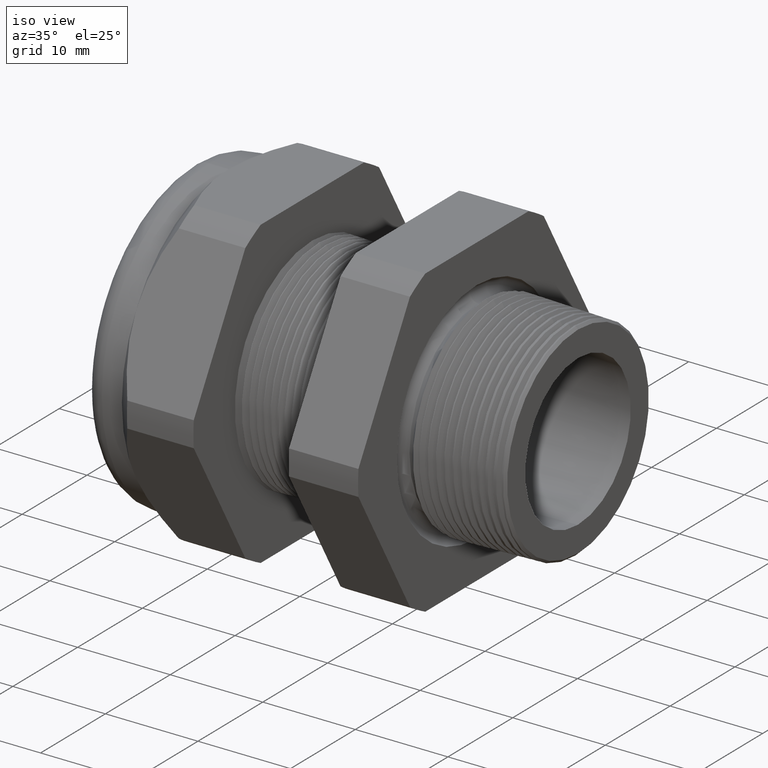
[diagram: clean part render]
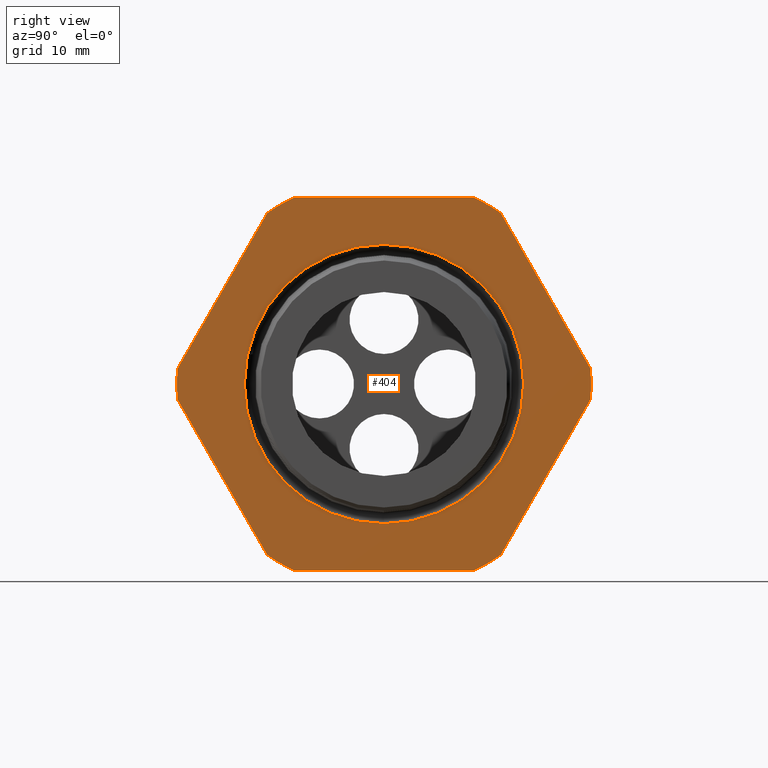
[diagram: tour spotlight — one face highlighted and labeled with its STEP entity id]
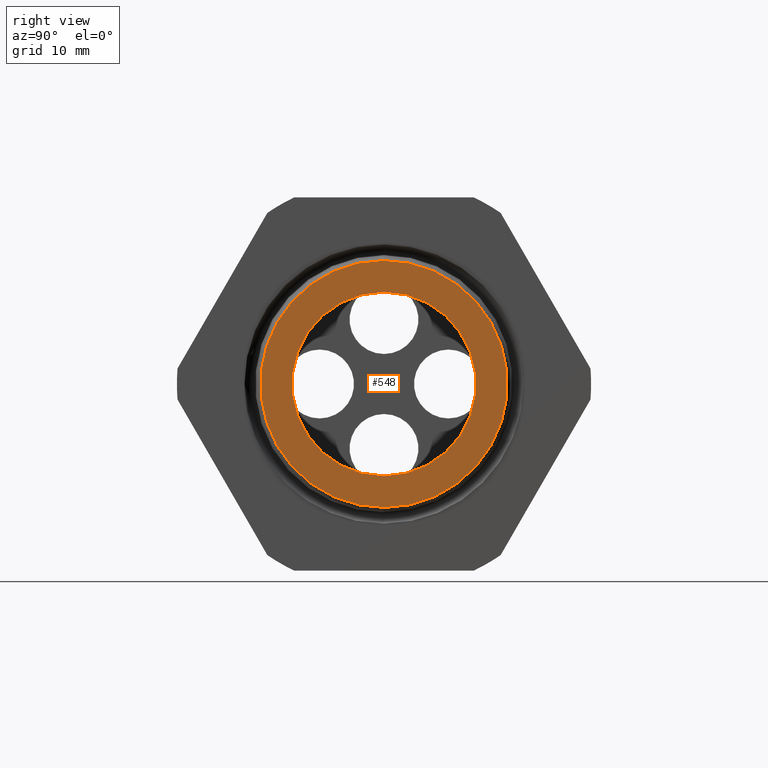
[diagram: tour spotlight — one face highlighted and labeled with its STEP entity id]
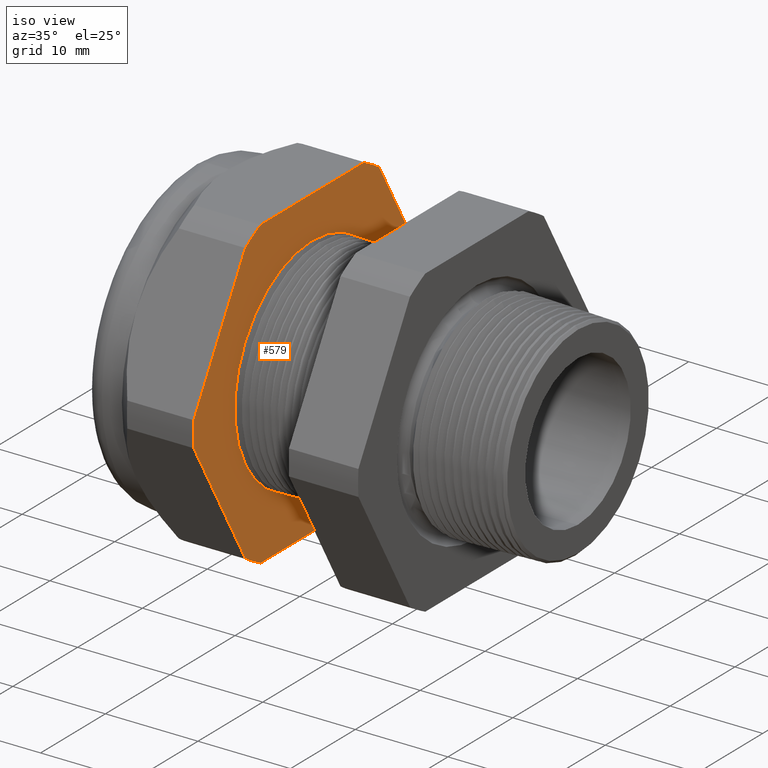
[diagram: tour spotlight — one face highlighted and labeled with its STEP entity id]
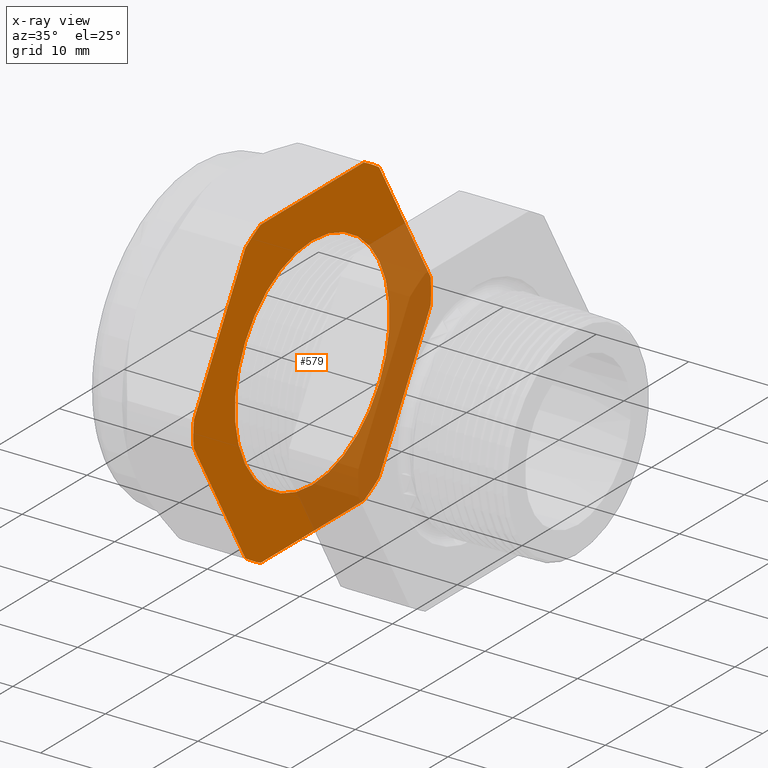
[diagram: x-ray of the same camera — body ghosted, this tour face saturated]
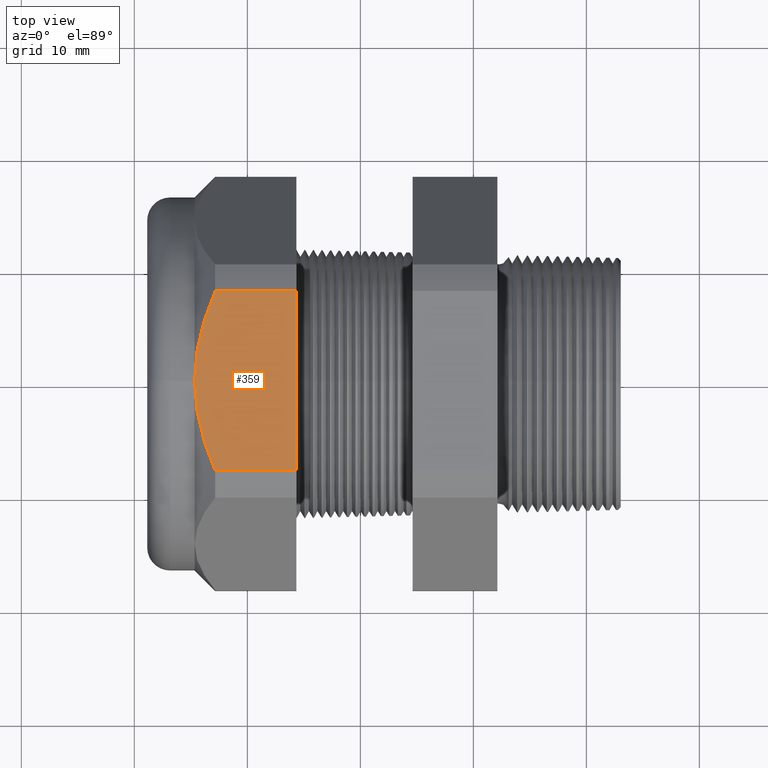
[diagram: tour spotlight — one face highlighted and labeled with its STEP entity id]
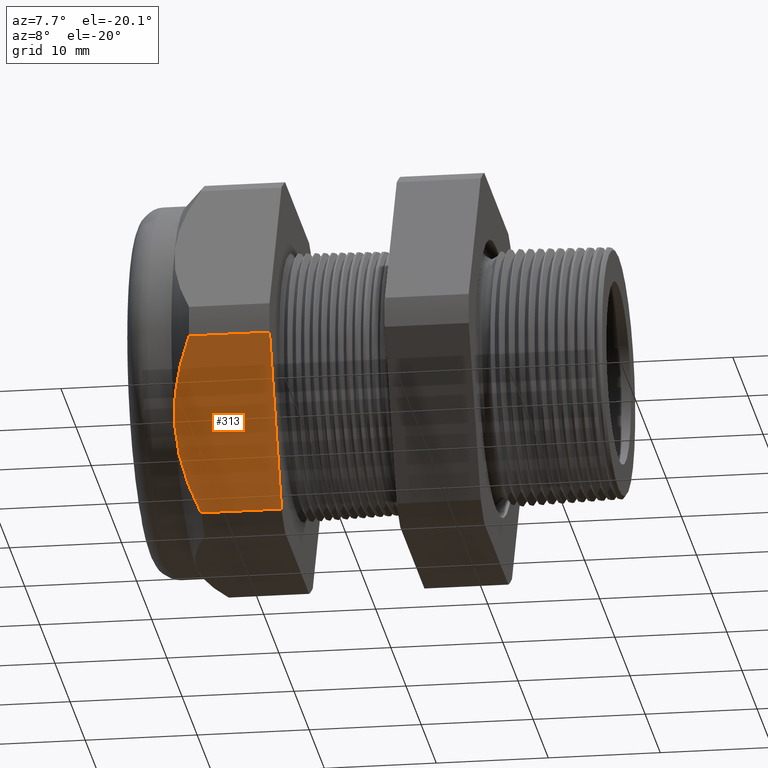
[diagram: tour spotlight — one face highlighted and labeled with its STEP entity id]
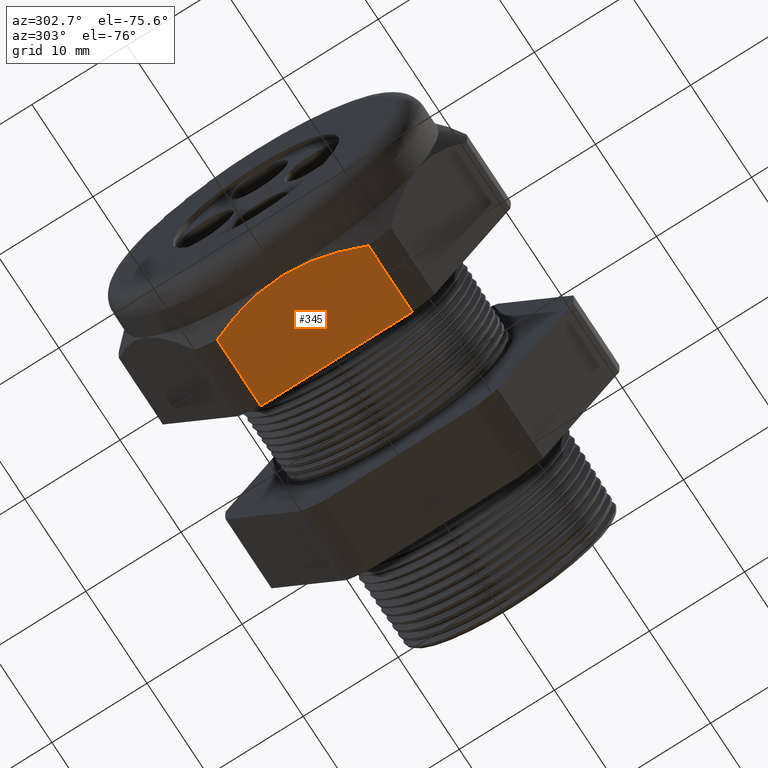
[diagram: tour spotlight — one face highlighted and labeled with its STEP entity id]
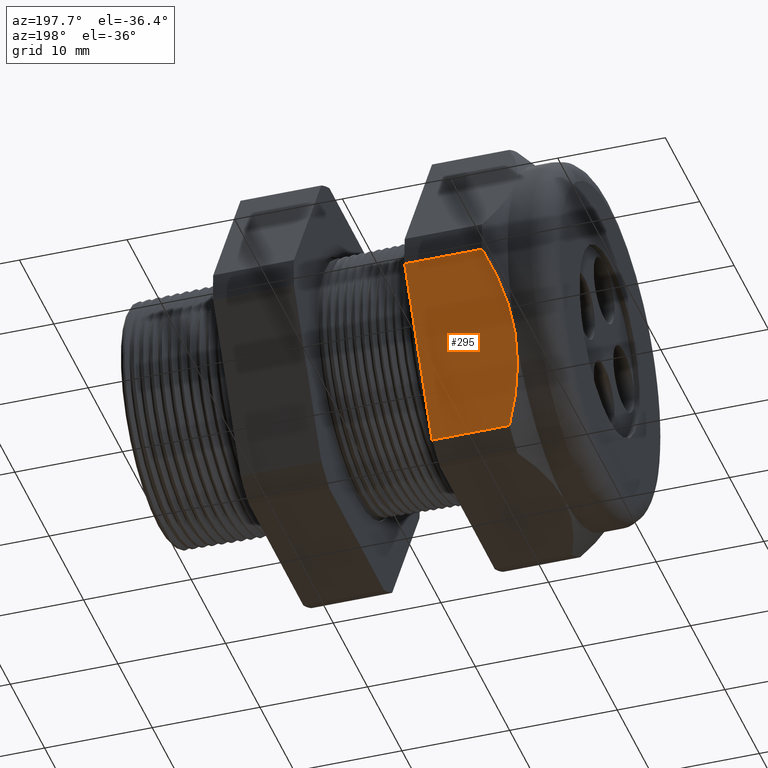
[diagram: tour spotlight — one face highlighted and labeled with its STEP entity id]
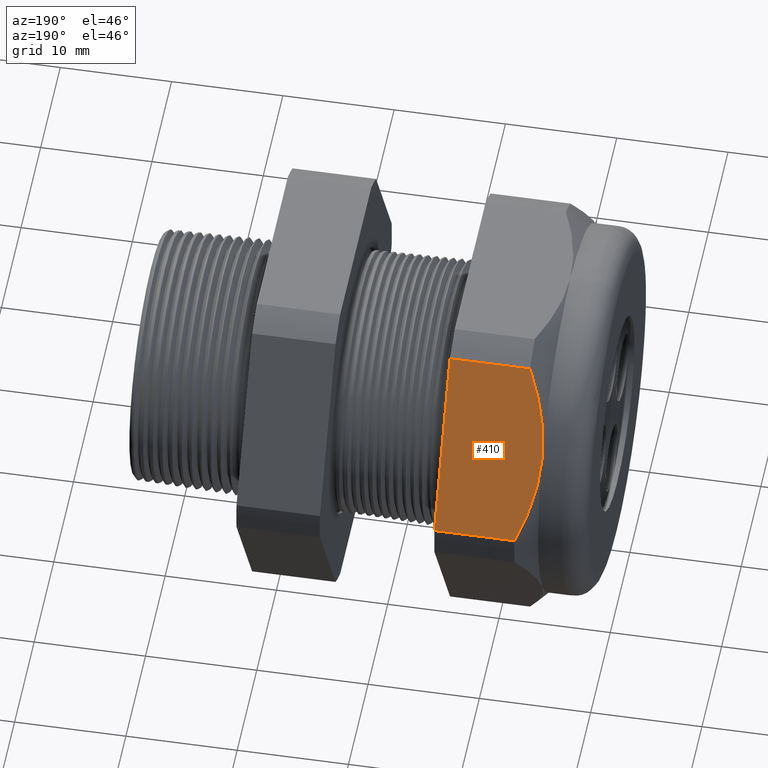
[diagram: tour spotlight — one face highlighted and labeled with its STEP entity id]
A machine part: a face-by-face anatomy tour. The part has 214 B-rep faces; the first image is the clean iso view, then the 8 largest visible faces are spotlighted one at a time (largest first), each with its STEP entity span.

Face 1 — right view, entity #404. In plain terms, the highlighted planar face has unit normal (1, 0, 0).
Definition (entity closure, byte-faithful):
#388 = VERTEX_POINT ( 'NONE', #1915 ) ;
#389 = ORIENTED_EDGE ( 'NONE', *, *, #390, .T. ) ;
#390 = EDGE_CURVE ( 'NONE', #388, #391, #1914, .T. ) ;
#391 = VERTEX_POINT ( 'NONE', #1910 ) ;
#392 = VERTEX_POINT ( 'NONE', #1909 ) ;
#404 = ADVANCED_FACE ( 'NONE', ( #1948, #1947 ), #1946, .T. ) ;
#405 = EDGE_LOOP ( 'NONE', ( #406, #464 ) ) ;
#406 = ORIENTED_EDGE ( 'NONE', *, *, #463, .F. ) ;
#435 = ORIENTED_EDGE ( 'NONE', *, *, #436, .T. ) ;
#436 = EDGE_CURVE ( 'NONE', #461, #462, #1983, .T. ) ;
#437 = ORIENTED_EDGE ( 'NONE', *, *, #438, .T. ) ;
#438 = EDGE_CURVE ( 'NONE', #462, #439, #2042, .T. ) ;
#439 = VERTEX_POINT ( 'NONE', #2037 ) ;
#440 = ORIENTED_EDGE ( 'NONE', *, *, #441, .T. ) ;
#441 = EDGE_CURVE ( 'NONE', #439, #442, #2036, .T. ) ;
#442 = VERTEX_POINT ( 'NONE', #2032 ) ;
#443 = ORIENTED_EDGE ( 'NONE', *, *, #444, .T. ) ;
#444 = EDGE_CURVE ( 'NONE', #442, #468, #2031, .T. ) ;
#448 = ORIENTED_EDGE ( 'NONE', *, *, #449, .T. ) ;
#449 = EDGE_CURVE ( 'NONE', #391, #392, #2019, .T. ) ;
#450 = ORIENTED_EDGE ( 'NONE', *, *, #451, .T. ) ;
#451 = EDGE_CURVE ( 'NONE', #392, #452, #2015, .T. ) ;
#452 = VERTEX_POINT ( 'NONE', #2074 ) ;
#453 = ORIENTED_EDGE ( 'NONE', *, *, #454, .T. ) ;
#454 = EDGE_CURVE ( 'NONE', #452, #455, #2073, .T. ) ;
#455 = VERTEX_POINT ( 'NONE', #2068 ) ;
#456 = ORIENTED_EDGE ( 'NONE', *, *, #457, .T. ) ;
#457 = EDGE_CURVE ( 'NONE', #455, #458, #2067, .T. ) ;
#458 = VERTEX_POINT ( 'NONE', #2063 ) ;
#459 = ORIENTED_EDGE ( 'NONE', *, *, #460, .T. ) ;
#460 = EDGE_CURVE ( 'NONE', #458, #461, #2062, .T. ) ;
#461 = VERTEX_POINT ( 'NONE', #2057 ) ;
#462 = VERTEX_POINT ( 'NONE', #2056 ) ;
#463 = EDGE_CURVE ( 'NONE', #1185, #4895, #2055, .T. ) ;
#464 = ORIENTED_EDGE ( 'NONE', *, *, #1188, .F. ) ;
#465 = EDGE_LOOP ( 'NONE', ( #466, #470, #389, #448, #450, #453, #456, #459, #435, #437, #440, #443 ) ) ;
#466 = ORIENTED_EDGE ( 'NONE', *, *, #467, .T. ) ;
#467 = EDGE_CURVE ( 'NONE', #468, #469, #2050, .T. ) ;
#468 = VERTEX_POINT ( 'NONE', #2046 ) ;
#469 = VERTEX_POINT ( 'NONE', #2045 ) ;
#470 = ORIENTED_EDGE ( 'NONE', *, *, #471, .T. ) ;
#471 = EDGE_CURVE ( 'NONE', #469, #388, #2109, .T. ) ;
#1185 = VERTEX_POINT ( 'NONE', #2907 ) ;
#1188 = EDGE_CURVE ( 'NONE', #4895, #1185, #2901, .T. ) ;
#1909 = CARTESIAN_POINT ( 'NONE',  ( -0.3100000000000000000, 0.3131489262315937900, 0.6499999999999999100 ) ) ;
#1910 = CARTESIAN_POINT ( 'NONE',  ( -0.3100000000000000000, 0.4063420493440890700, 0.5961949252843787800 ) ) ;
#1911 = DIRECTION ( 'NONE',  ( 0.0000000000000000000, -0.4999999999999998900, 0.8660254037844386000 ) ) ;
#1912 = VECTOR ( 'NONE', #1911, 39.37007874015748100 ) ;
#1913 = CARTESIAN_POINT ( 'NONE',  ( -0.3100000000000000000, 0.8879165124598854500, -0.2379165124598849300 ) ) ;
#1914 = LINE ( 'NONE', #1913, #1912 ) ;
#1915 = CARTESIAN_POINT ( 'NONE',  ( -0.3100000000000000000, 0.7194909755756817600, 0.05380507471562173000 ) ) ;
#1942 = DIRECTION ( 'NONE',  ( 0.0000000000000000000, 0.0000000000000000000, -1.000000000000000000 ) ) ;
#1943 = DIRECTION ( 'NONE',  ( 1.000000000000000000, 0.0000000000000000000, 0.0000000000000000000 ) ) ;
#1944 = CARTESIAN_POINT ( 'NONE',  ( -0.3100000000000000000, 1.300000000000000000, 0.0000000000000000000 ) ) ;
#1945 = AXIS2_PLACEMENT_3D ( 'NONE', #1944, #1943, #1942 ) ;
#1946 = PLANE ( 'NONE',  #1945 ) ;
#1947 = FACE_OUTER_BOUND ( 'NONE', #465, .T. ) ;
#1948 = FACE_BOUND ( 'NONE', #405, .T. ) ;
#1983 = LINE ( 'NONE', #1989, #2044 ) ;
#1989 = CARTESIAN_POINT ( 'NONE',  ( -0.3100000000000000000, -0.2379165124598852700, -0.8879165124598854500 ) ) ;
#2014 = CARTESIAN_POINT ( 'NONE',  ( -0.3100000000000000000, 1.300000000000000000, 0.6499999999999999100 ) ) ;
#2015 = LINE ( 'NONE', #2014, #2076 ) ;
#2016 = DIRECTION ( 'NONE',  ( 0.0000000000000000000, 0.0000000000000000000, -1.000000000000000000 ) ) ;
#2017 = DIRECTION ( 'NONE',  ( 1.000000000000000000, 0.0000000000000000000, 0.0000000000000000000 ) ) ;
#2018 = AXIS2_PLACEMENT_3D ( 'NONE', #2024, #2017, #2016 ) ;
#2019 = CIRCLE ( 'NONE', #2018, 0.7215000000000000300 ) ;
#2024 = CARTESIAN_POINT ( 'NONE',  ( -0.3100000000000000000, 0.0000000000000000000, 0.0000000000000000000 ) ) ;
#2027 = DIRECTION ( 'NONE',  ( 0.0000000000000000000, 0.0000000000000000000, -1.000000000000000000 ) ) ;
#2028 = DIRECTION ( 'NONE',  ( 1.000000000000000000, 0.0000000000000000000, 0.0000000000000000000 ) ) ;
#2029 = CARTESIAN_POINT ( 'NONE',  ( -0.3100000000000000000, 0.0000000000000000000, 0.0000000000000000000 ) ) ;
#2030 = AXIS2_PLACEMENT_3D ( 'NONE', #2029, #2028, #2027 ) ;
#2031 = CIRCLE ( 'NONE', #2030, 0.7215000000000000300 ) ;
#2032 = CARTESIAN_POINT ( 'NONE',  ( -0.3100000000000000000, 0.3131489262315934100, -0.6500000000000001300 ) ) ;
#2033 = DIRECTION ( 'NONE',  ( 0.0000000000000000000, 1.000000000000000000, 0.0000000000000000000 ) ) ;
#2034 = VECTOR ( 'NONE', #2033, 39.37007874015748100 ) ;
#2035 = CARTESIAN_POINT ( 'NONE',  ( -0.3100000000000000000, 1.300000000000000000, -0.6500000000000001300 ) ) ;
#2036 = LINE ( 'NONE', #2035, #2034 ) ;
#2037 = CARTESIAN_POINT ( 'NONE',  ( -0.3100000000000000000, -0.3131489262315934100, -0.6500000000000001300 ) ) ;
#2038 = DIRECTION ( 'NONE',  ( 0.0000000000000000000, 0.0000000000000000000, -1.000000000000000000 ) ) ;
#2039 = DIRECTION ( 'NONE',  ( 1.000000000000000000, 0.0000000000000000000, 0.0000000000000000000 ) ) ;
#2040 = CARTESIAN_POINT ( 'NONE',  ( -0.3100000000000000000, 0.0000000000000000000, 0.0000000000000000000 ) ) ;
#2041 = AXIS2_PLACEMENT_3D ( 'NONE', #2040, #2039, #2038 ) ;
#2042 = CIRCLE ( 'NONE', #2041, 0.7215000000000000300 ) ;
#2043 = DIRECTION ( 'NONE',  ( 0.0000000000000000000, 0.5000000000000001100, -0.8660254037844386000 ) ) ;
#2044 = VECTOR ( 'NONE', #2043, 39.37007874015748100 ) ;
#2045 = CARTESIAN_POINT ( 'NONE',  ( -0.3100000000000000000, 0.7194909755756817600, -0.05380507471562094600 ) ) ;
#2046 = CARTESIAN_POINT ( 'NONE',  ( -0.3100000000000000000, 0.4063420493440886800, -0.5961949252843790100 ) ) ;
#2047 = DIRECTION ( 'NONE',  ( 0.0000000000000000000, 0.4999999999999996100, 0.8660254037844388200 ) ) ;
#2048 = VECTOR ( 'NONE', #2047, 39.37007874015748900 ) ;
#2049 = CARTESIAN_POINT ( 'NONE',  ( -0.3100000000000000000, 0.8879165124598849000, 0.2379165124598850200 ) ) ;
#2050 = LINE ( 'NONE', #2049, #2048 ) ;
#2051 = DIRECTION ( 'NONE',  ( 0.0000000000000000000, 0.0000000000000000000, -1.000000000000000000 ) ) ;
#2052 = DIRECTION ( 'NONE',  ( 1.000000000000000000, 0.0000000000000000000, 0.0000000000000000000 ) ) ;
#2053 = CARTESIAN_POINT ( 'NONE',  ( -0.3100000000000000000, 0.0000000000000000000, 0.0000000000000000000 ) ) ;
#2054 = AXIS2_PLACEMENT_3D ( 'NONE', #2053, #2052, #2051 ) ;
#2055 = CIRCLE ( 'NONE', #2054, 0.4863026235185991000 ) ;
#2056 = CARTESIAN_POINT ( 'NONE',  ( -0.3100000000000000000, -0.4063420493440881300, -0.5961949252843793400 ) ) ;
#2057 = CARTESIAN_POINT ( 'NONE',  ( -0.3100000000000000000, -0.7194909755756819800, -0.05380507471562082100 ) ) ;
#2058 = DIRECTION ( 'NONE',  ( 0.0000000000000000000, 0.0000000000000000000, -1.000000000000000000 ) ) ;
#2059 = DIRECTION ( 'NONE',  ( 1.000000000000000000, 0.0000000000000000000, 0.0000000000000000000 ) ) ;
#2060 = CARTESIAN_POINT ( 'NONE',  ( -0.3100000000000000000, 0.0000000000000000000, 0.0000000000000000000 ) ) ;
#2061 = AXIS2_PLACEMENT_3D ( 'NONE', #2060, #2059, #2058 ) ;
#2062 = CIRCLE ( 'NONE', #2061, 0.7215000000000000300 ) ;
#2063 = CARTESIAN_POINT ( 'NONE',  ( -0.3100000000000000000, -0.7194909755756819800, 0.05380507471562025900 ) ) ;
#2064 = DIRECTION ( 'NONE',  ( 0.0000000000000000000, -0.4999999999999995600, -0.8660254037844388200 ) ) ;
#2065 = VECTOR ( 'NONE', #2064, 39.37007874015748900 ) ;
#2066 = CARTESIAN_POINT ( 'NONE',  ( -0.3100000000000000000, -0.2379165124598858200, 0.8879165124598844500 ) ) ;
#2067 = LINE ( 'NONE', #2066, #2065 ) ;
#2068 = CARTESIAN_POINT ( 'NONE',  ( -0.3100000000000000000, -0.4063420493440885700, 0.5961949252843791200 ) ) ;
#2069 = DIRECTION ( 'NONE',  ( 0.0000000000000000000, 0.0000000000000000000, -1.000000000000000000 ) ) ;
#2070 = DIRECTION ( 'NONE',  ( 1.000000000000000000, 0.0000000000000000000, 0.0000000000000000000 ) ) ;
#2071 = CARTESIAN_POINT ( 'NONE',  ( -0.3100000000000000000, 0.0000000000000000000, 0.0000000000000000000 ) ) ;
#2072 = AXIS2_PLACEMENT_3D ( 'NONE', #2071, #2070, #2069 ) ;
#2073 = CIRCLE ( 'NONE', #2072, 0.7215000000000000300 ) ;
#2074 = CARTESIAN_POINT ( 'NONE',  ( -0.3100000000000000000, -0.3131489262315937400, 0.6500000000000000200 ) ) ;
#2075 = DIRECTION ( 'NONE',  ( 0.0000000000000000000, -1.000000000000000000, 0.0000000000000000000 ) ) ;
#2076 = VECTOR ( 'NONE', #2075, 39.37007874015748100 ) ;
#2105 = DIRECTION ( 'NONE',  ( 0.0000000000000000000, 0.0000000000000000000, -1.000000000000000000 ) ) ;
#2106 = DIRECTION ( 'NONE',  ( 1.000000000000000000, 0.0000000000000000000, 0.0000000000000000000 ) ) ;
#2107 = CARTESIAN_POINT ( 'NONE',  ( -0.3100000000000000000, 0.0000000000000000000, 0.0000000000000000000 ) ) ;
#2108 = AXIS2_PLACEMENT_3D ( 'NONE', #2107, #2106, #2105 ) ;
#2109 = CIRCLE ( 'NONE', #2108, 0.7214999999999999200 ) ;
#2897 = DIRECTION ( 'NONE',  ( 0.0000000000000000000, 0.0000000000000000000, -1.000000000000000000 ) ) ;
#2898 = DIRECTION ( 'NONE',  ( 1.000000000000000000, 0.0000000000000000000, 0.0000000000000000000 ) ) ;
#2899 = CARTESIAN_POINT ( 'NONE',  ( -0.3100000000000000000, 0.0000000000000000000, 0.0000000000000000000 ) ) ;
#2900 = AXIS2_PLACEMENT_3D ( 'NONE', #2899, #2898, #2897 ) ;
#2901 = CIRCLE ( 'NONE', #2900, 0.4863026235185991000 ) ;
#2907 = CARTESIAN_POINT ( 'NONE',  ( -0.3100000000000000000, 0.0000000000000000000, -0.4863026235185991000 ) ) ;
#3051 = CARTESIAN_POINT ( 'NONE',  ( -0.3100000000000000000, 5.955489513090126900E-017, 0.4863026235185991000 ) ) ;
#4895 = VERTEX_POINT ( 'NONE', #3051 ) ;

Face 2 — right view, entity #548. In plain terms, the highlighted planar face has unit normal (1, 0, 0).
Definition (entity closure, byte-faithful):
#472 = EDGE_LOOP ( 'NONE', ( #473, #474 ) ) ;
#473 = ORIENTED_EDGE ( 'NONE', *, *, #5709, .F. ) ;
#474 = ORIENTED_EDGE ( 'NONE', *, *, #490, .F. ) ;
#490 = EDGE_CURVE ( 'NONE', #5711, #5710, #2078, .T. ) ;
#548 = ADVANCED_FACE ( 'NONE', ( #2215, #2214 ), #2213, .T. ) ;
#549 = EDGE_LOOP ( 'NONE', ( #550, #552 ) ) ;
#550 = ORIENTED_EDGE ( 'NONE', *, *, #551, .T. ) ;
#551 = EDGE_CURVE ( 'NONE', #5677, #5676, #2207, .T. ) ;
#552 = ORIENTED_EDGE ( 'NONE', *, *, #5675, .T. ) ;
#2078 = CIRCLE ( 'NONE', #2137, 0.3204016610924743100 ) ;
#2134 = DIRECTION ( 'NONE',  ( 0.0000000000000000000, 0.0000000000000000000, -1.000000000000000000 ) ) ;
#2135 = DIRECTION ( 'NONE',  ( 1.000000000000000000, 0.0000000000000000000, 0.0000000000000000000 ) ) ;
#2136 = CARTESIAN_POINT ( 'NONE',  ( 0.1200000000000000200, 0.0000000000000000000, 0.0000000000000000000 ) ) ;
#2137 = AXIS2_PLACEMENT_3D ( 'NONE', #2136, #2135, #2134 ) ;
#2203 = DIRECTION ( 'NONE',  ( 0.0000000000000000000, 0.0000000000000000000, -1.000000000000000000 ) ) ;
#2204 = DIRECTION ( 'NONE',  ( 1.000000000000000000, 0.0000000000000000000, 0.0000000000000000000 ) ) ;
#2205 = CARTESIAN_POINT ( 'NONE',  ( 0.1200000000000000200, 0.0000000000000000000, 0.0000000000000000000 ) ) ;
#2206 = AXIS2_PLACEMENT_3D ( 'NONE', #2205, #2204, #2203 ) ;
#2207 = CIRCLE ( 'NONE', #2206, 0.4301292403640452600 ) ;
#2209 = DIRECTION ( 'NONE',  ( 0.0000000000000000000, 0.0000000000000000000, -1.000000000000000000 ) ) ;
#2210 = DIRECTION ( 'NONE',  ( 1.000000000000000000, 0.0000000000000000000, 0.0000000000000000000 ) ) ;
#2211 = CARTESIAN_POINT ( 'NONE',  ( 0.1200000000000000200, 0.3204016610924743100, 0.0000000000000000000 ) ) ;
#2212 = AXIS2_PLACEMENT_3D ( 'NONE', #2211, #2210, #2209 ) ;
#2213 = PLANE ( 'NONE',  #2212 ) ;
#2214 = FACE_BOUND ( 'NONE', #472, .T. ) ;
#2215 = FACE_OUTER_BOUND ( 'NONE', #549, .T. ) ;
#4561 = CARTESIAN_POINT ( 'NONE',  ( 0.1200000000000000200, 0.0000000000000000000, 0.4301292403640452600 ) ) ;
#4562 = CARTESIAN_POINT ( 'NONE',  ( 0.1200000000000000200, 5.332067285935767100E-017, -0.4301292403640452600 ) ) ;
#4563 = DIRECTION ( 'NONE',  ( 0.0000000000000000000, 0.0000000000000000000, -1.000000000000000000 ) ) ;
#4564 = DIRECTION ( 'NONE',  ( 1.000000000000000000, 0.0000000000000000000, 0.0000000000000000000 ) ) ;
#4565 = AXIS2_PLACEMENT_3D ( 'NONE', #4572, #4564, #4563 ) ;
#4566 = CIRCLE ( 'NONE', #4565, 0.4301292403640452600 ) ;
#4572 = CARTESIAN_POINT ( 'NONE',  ( 0.1200000000000000200, 0.0000000000000000000, 0.0000000000000000000 ) ) ;
#4630 = CARTESIAN_POINT ( 'NONE',  ( 0.1200000000000000200, 4.135642411978520400E-017, -0.3204016610924743100 ) ) ;
#4631 = CARTESIAN_POINT ( 'NONE',  ( 0.1200000000000000200, 0.0000000000000000000, 0.3204016610924743100 ) ) ;
#4632 = DIRECTION ( 'NONE',  ( 0.0000000000000000000, 0.0000000000000000000, -1.000000000000000000 ) ) ;
#4633 = DIRECTION ( 'NONE',  ( 1.000000000000000000, 0.0000000000000000000, 0.0000000000000000000 ) ) ;
#4634 = CARTESIAN_POINT ( 'NONE',  ( 0.1200000000000000200, 0.0000000000000000000, 0.0000000000000000000 ) ) ;
#4635 = AXIS2_PLACEMENT_3D ( 'NONE', #4634, #4633, #4632 ) ;
#4636 = CIRCLE ( 'NONE', #4635, 0.3204016610924743100 ) ;
#5675 = EDGE_CURVE ( 'NONE', #5676, #5677, #4566, .T. ) ;
#5676 = VERTEX_POINT ( 'NONE', #4562 ) ;
#5677 = VERTEX_POINT ( 'NONE', #4561 ) ;
#5709 = EDGE_CURVE ( 'NONE', #5710, #5711, #4636, .T. ) ;
#5710 = VERTEX_POINT ( 'NONE', #4631 ) ;
#5711 = VERTEX_POINT ( 'NONE', #4630 ) ;

Face 3 — iso view, entity #579. An x-ray twin of the same camera follows (body ghosted, this face saturated) — the face is partly hidden behind the body. In plain terms, the highlighted planar face has unit normal (1, 0, 0).
Definition (entity closure, byte-faithful):
#268 = VERTEX_POINT ( 'NONE', #1633 ) ;
#279 = VERTEX_POINT ( 'NONE', #1656 ) ;
#281 = EDGE_CURVE ( 'NONE', #299, #279, #1655, .T. ) ;
#286 = VERTEX_POINT ( 'NONE', #1640 ) ;
#299 = VERTEX_POINT ( 'NONE', #1682 ) ;
#309 = EDGE_CURVE ( 'NONE', #385, #317, #1720, .T. ) ;
#312 = VERTEX_POINT ( 'NONE', #1709 ) ;
#317 = VERTEX_POINT ( 'NONE', #1757 ) ;
#329 = EDGE_CURVE ( 'NONE', #268, #286, #1742, .T. ) ;
#334 = VERTEX_POINT ( 'NONE', #1780 ) ;
#340 = EDGE_CURVE ( 'NONE', #334, #268, #1773, .T. ) ;
#344 = EDGE_CURVE ( 'NONE', #286, #299, #1830, .T. ) ;
#349 = VERTEX_POINT ( 'NONE', #1815 ) ;
#358 = EDGE_CURVE ( 'NONE', #380, #312, #1801, .T. ) ;
#363 = VERTEX_POINT ( 'NONE', #1849 ) ;
#375 = EDGE_CURVE ( 'NONE', #312, #385, #1839, .T. ) ;
#380 = VERTEX_POINT ( 'NONE', #1869 ) ;
#381 = EDGE_CURVE ( 'NONE', #317, #334, #1868, .T. ) ;
#385 = VERTEX_POINT ( 'NONE', #1917 ) ;
#395 = EDGE_CURVE ( 'NONE', #414, #349, #1907, .T. ) ;
#403 = EDGE_CURVE ( 'NONE', #279, #414, #1891, .T. ) ;
#409 = EDGE_CURVE ( 'NONE', #349, #363, #1941, .T. ) ;
#414 = VERTEX_POINT ( 'NONE', #1926 ) ;
#426 = EDGE_CURVE ( 'NONE', #363, #380, #2004, .T. ) ;
#565 = ORIENTED_EDGE ( 'NONE', *, *, #409, .T. ) ;
#566 = ORIENTED_EDGE ( 'NONE', *, *, #426, .T. ) ;
#567 = ORIENTED_EDGE ( 'NONE', *, *, #358, .T. ) ;
#568 = ORIENTED_EDGE ( 'NONE', *, *, #375, .T. ) ;
#569 = ORIENTED_EDGE ( 'NONE', *, *, #309, .T. ) ;
#570 = ORIENTED_EDGE ( 'NONE', *, *, #381, .T. ) ;
#571 = ORIENTED_EDGE ( 'NONE', *, *, #340, .T. ) ;
#572 = ORIENTED_EDGE ( 'NONE', *, *, #329, .T. ) ;
#573 = ORIENTED_EDGE ( 'NONE', *, *, #344, .T. ) ;
#579 = ADVANCED_FACE ( 'NONE', ( #2245, #2244 ), #2243, .T. ) ;
#580 = EDGE_LOOP ( 'NONE', ( #581, #583 ) ) ;
#581 = ORIENTED_EDGE ( 'NONE', *, *, #582, .F. ) ;
#582 = EDGE_CURVE ( 'NONE', #5669, #5615, #2301, .T. ) ;
#583 = ORIENTED_EDGE ( 'NONE', *, *, #5668, .F. ) ;
#584 = EDGE_LOOP ( 'NONE', ( #585, #586, #587, #565, #566, #567, #568, #569, #570, #571, #572, #573 ) ) ;
#585 = ORIENTED_EDGE ( 'NONE', *, *, #281, .T. ) ;
#586 = ORIENTED_EDGE ( 'NONE', *, *, #403, .T. ) ;
#587 = ORIENTED_EDGE ( 'NONE', *, *, #395, .T. ) ;
#1633 = CARTESIAN_POINT ( 'NONE',  ( -1.010314960629921100, -0.3131489262315934100, -0.6500000000000001300 ) ) ;
#1640 = CARTESIAN_POINT ( 'NONE',  ( -1.010314960629921100, 0.3131489262315934100, -0.6500000000000001300 ) ) ;
#1652 = DIRECTION ( 'NONE',  ( 0.0000000000000000000, 0.4999999999999996100, 0.8660254037844388200 ) ) ;
#1653 = VECTOR ( 'NONE', #1652, 39.37007874015748900 ) ;
#1654 = CARTESIAN_POINT ( 'NONE',  ( -1.010314960629921100, 0.6804165124598852100, -0.1214840301106568700 ) ) ;
#1655 = LINE ( 'NONE', #1654, #1653 ) ;
#1656 = CARTESIAN_POINT ( 'NONE',  ( -1.010314960629921100, 0.7194909755756818700, -0.05380507471562089000 ) ) ;
#1682 = CARTESIAN_POINT ( 'NONE',  ( -1.010314960629921100, 0.4063420493440886800, -0.5961949252843790100 ) ) ;
#1709 = CARTESIAN_POINT ( 'NONE',  ( -1.010314960629921100, -0.4063420493440885700, 0.5961949252843791200 ) ) ;
#1716 = DIRECTION ( 'NONE',  ( 0.0000000000000000000, 0.0000000000000000000, -1.000000000000000000 ) ) ;
#1717 = DIRECTION ( 'NONE',  ( 1.000000000000000000, 0.0000000000000000000, 0.0000000000000000000 ) ) ;
#1718 = CARTESIAN_POINT ( 'NONE',  ( -1.010314960629921100, 0.0000000000000000000, 0.0000000000000000000 ) ) ;
#1719 = AXIS2_PLACEMENT_3D ( 'NONE', #1718, #1717, #1716 ) ;
#1720 = CIRCLE ( 'NONE', #1719, 0.7215000000000000300 ) ;
#1741 = CARTESIAN_POINT ( 'NONE',  ( -1.010314960629921100, 0.4699999999999999700, -0.6500000000000001300 ) ) ;
#1742 = LINE ( 'NONE', #1741, #1793 ) ;
#1757 = CARTESIAN_POINT ( 'NONE',  ( -1.010314960629921100, -0.7194909755756819800, -0.05380507471562082100 ) ) ;
#1769 = DIRECTION ( 'NONE',  ( 0.0000000000000000000, 0.0000000000000000000, -1.000000000000000000 ) ) ;
#1770 = DIRECTION ( 'NONE',  ( 1.000000000000000000, 0.0000000000000000000, 0.0000000000000000000 ) ) ;
#1771 = CARTESIAN_POINT ( 'NONE',  ( -1.010314960629921100, 0.0000000000000000000, 0.0000000000000000000 ) ) ;
#1772 = AXIS2_PLACEMENT_3D ( 'NONE', #1771, #1770, #1769 ) ;
#1773 = CIRCLE ( 'NONE', #1772, 0.7215000000000000300 ) ;
#1780 = CARTESIAN_POINT ( 'NONE',  ( -1.010314960629921100, -0.4063420493440881300, -0.5961949252843793400 ) ) ;
#1792 = DIRECTION ( 'NONE',  ( 0.0000000000000000000, 1.000000000000000000, 0.0000000000000000000 ) ) ;
#1793 = VECTOR ( 'NONE', #1792, 39.37007874015748100 ) ;
#1798 = DIRECTION ( 'NONE',  ( 1.000000000000000000, 0.0000000000000000000, 0.0000000000000000000 ) ) ;
#1799 = CARTESIAN_POINT ( 'NONE',  ( -1.010314960629921100, 0.0000000000000000000, 0.0000000000000000000 ) ) ;
#1800 = AXIS2_PLACEMENT_3D ( 'NONE', #1799, #1798, #1859 ) ;
#1801 = CIRCLE ( 'NONE', #1800, 0.7215000000000000300 ) ;
#1815 = CARTESIAN_POINT ( 'NONE',  ( -1.010314960629921100, 0.4063420493440890700, 0.5961949252843787800 ) ) ;
#1826 = DIRECTION ( 'NONE',  ( 0.0000000000000000000, 0.0000000000000000000, -1.000000000000000000 ) ) ;
#1827 = DIRECTION ( 'NONE',  ( 1.000000000000000000, 0.0000000000000000000, 0.0000000000000000000 ) ) ;
#1828 = CARTESIAN_POINT ( 'NONE',  ( -1.010314960629921100, 0.0000000000000000000, 0.0000000000000000000 ) ) ;
#1829 = AXIS2_PLACEMENT_3D ( 'NONE', #1828, #1827, #1826 ) ;
#1830 = CIRCLE ( 'NONE', #1829, 0.7215000000000000300 ) ;
#1839 = LINE ( 'NONE', #1888, #1881 ) ;
#1849 = CARTESIAN_POINT ( 'NONE',  ( -1.010314960629921100, 0.3131489262315937900, 0.6499999999999999100 ) ) ;
#1859 = DIRECTION ( 'NONE',  ( 0.0000000000000000000, 0.0000000000000000000, -1.000000000000000000 ) ) ;
#1865 = DIRECTION ( 'NONE',  ( 0.0000000000000000000, 0.5000000000000001100, -0.8660254037844386000 ) ) ;
#1866 = VECTOR ( 'NONE', #1865, 39.37007874015748100 ) ;
#1867 = CARTESIAN_POINT ( 'NONE',  ( -1.010314960629921100, -0.4454165124598852300, -0.5285159698893432400 ) ) ;
#1868 = LINE ( 'NONE', #1867, #1866 ) ;
#1869 = CARTESIAN_POINT ( 'NONE',  ( -1.010314960629921100, -0.3131489262315937400, 0.6500000000000000200 ) ) ;
#1880 = DIRECTION ( 'NONE',  ( 0.0000000000000000000, -0.4999999999999995600, -0.8660254037844388200 ) ) ;
#1881 = VECTOR ( 'NONE', #1880, 39.37007874015748900 ) ;
#1888 = CARTESIAN_POINT ( 'NONE',  ( -1.010314960629921100, -0.4454165124598855100, 0.5285159698893426800 ) ) ;
#1891 = CIRCLE ( 'NONE', #1952, 0.7214999999999999200 ) ;
#1904 = DIRECTION ( 'NONE',  ( 0.0000000000000000000, -0.4999999999999998900, 0.8660254037844386000 ) ) ;
#1905 = VECTOR ( 'NONE', #1904, 39.37007874015748100 ) ;
#1906 = CARTESIAN_POINT ( 'NONE',  ( -1.010314960629921100, 0.6804165124598855500, 0.1214840301106571000 ) ) ;
#1907 = LINE ( 'NONE', #1906, #1905 ) ;
#1917 = CARTESIAN_POINT ( 'NONE',  ( -1.010314960629921100, -0.7194909755756819800, 0.05380507471562025900 ) ) ;
#1926 = CARTESIAN_POINT ( 'NONE',  ( -1.010314960629921100, 0.7194909755756817600, 0.05380507471562173000 ) ) ;
#1937 = DIRECTION ( 'NONE',  ( 0.0000000000000000000, 0.0000000000000000000, -1.000000000000000000 ) ) ;
#1938 = DIRECTION ( 'NONE',  ( 1.000000000000000000, 0.0000000000000000000, 0.0000000000000000000 ) ) ;
#1939 = CARTESIAN_POINT ( 'NONE',  ( -1.010314960629921100, 0.0000000000000000000, 0.0000000000000000000 ) ) ;
#1940 = AXIS2_PLACEMENT_3D ( 'NONE', #1939, #1938, #1937 ) ;
#1941 = CIRCLE ( 'NONE', #1940, 0.7215000000000000300 ) ;
#1949 = DIRECTION ( 'NONE',  ( 0.0000000000000000000, 0.0000000000000000000, -1.000000000000000000 ) ) ;
#1950 = DIRECTION ( 'NONE',  ( 1.000000000000000000, 0.0000000000000000000, 0.0000000000000000000 ) ) ;
#1951 = CARTESIAN_POINT ( 'NONE',  ( -1.010314960629921100, 0.0000000000000000000, 0.0000000000000000000 ) ) ;
#1952 = AXIS2_PLACEMENT_3D ( 'NONE', #1951, #1950, #1949 ) ;
#2001 = DIRECTION ( 'NONE',  ( 0.0000000000000000000, -1.000000000000000000, 0.0000000000000000000 ) ) ;
#2002 = VECTOR ( 'NONE', #2001, 39.37007874015748100 ) ;
#2003 = CARTESIAN_POINT ( 'NONE',  ( -1.010314960629921100, 0.4699999999999999700, 0.6499999999999999100 ) ) ;
#2004 = LINE ( 'NONE', #2003, #2002 ) ;
#2239 = DIRECTION ( 'NONE',  ( 0.0000000000000000000, 0.0000000000000000000, -1.000000000000000000 ) ) ;
#2240 = DIRECTION ( 'NONE',  ( 1.000000000000000000, 0.0000000000000000000, 0.0000000000000000000 ) ) ;
#2241 = CARTESIAN_POINT ( 'NONE',  ( -1.010314960629921100, 0.4699999999999999700, 0.0000000000000000000 ) ) ;
#2242 = AXIS2_PLACEMENT_3D ( 'NONE', #2241, #2240, #2239 ) ;
#2243 = PLANE ( 'NONE',  #2242 ) ;
#2244 = FACE_OUTER_BOUND ( 'NONE', #584, .T. ) ;
#2245 = FACE_BOUND ( 'NONE', #580, .T. ) ;
#2297 = DIRECTION ( 'NONE',  ( 0.0000000000000000000, 0.0000000000000000000, -1.000000000000000000 ) ) ;
#2298 = DIRECTION ( 'NONE',  ( 1.000000000000000000, 0.0000000000000000000, 0.0000000000000000000 ) ) ;
#2299 = CARTESIAN_POINT ( 'NONE',  ( -1.010314960629921100, 0.0000000000000000000, 0.0000000000000000000 ) ) ;
#2300 = AXIS2_PLACEMENT_3D ( 'NONE', #2299, #2298, #2297 ) ;
#2301 = CIRCLE ( 'NONE', #2300, 0.4699999999999999700 ) ;
#4439 = CARTESIAN_POINT ( 'NONE',  ( -1.010314960629921100, 5.755839955992559700E-017, -0.4699999999999999700 ) ) ;
#4514 = CARTESIAN_POINT ( 'NONE',  ( -1.010314960629921100, 0.0000000000000000000, 0.4699999999999999700 ) ) ;
#4515 = DIRECTION ( 'NONE',  ( 0.0000000000000000000, 0.0000000000000000000, -1.000000000000000000 ) ) ;
#4516 = DIRECTION ( 'NONE',  ( 1.000000000000000000, 0.0000000000000000000, 0.0000000000000000000 ) ) ;
#4517 = CARTESIAN_POINT ( 'NONE',  ( -1.010314960629921100, 0.0000000000000000000, 0.0000000000000000000 ) ) ;
#4518 = AXIS2_PLACEMENT_3D ( 'NONE', #4517, #4516, #4515 ) ;
#4519 = CIRCLE ( 'NONE', #4518, 0.4699999999999999700 ) ;
#5615 = VERTEX_POINT ( 'NONE', #4439 ) ;
#5668 = EDGE_CURVE ( 'NONE', #5615, #5669, #4519, .T. ) ;
#5669 = VERTEX_POINT ( 'NONE', #4514 ) ;

Face 4 — top view, entity #359. In plain terms, the highlighted planar face has unit normal (0, 0, 1).
Definition (entity closure, byte-faithful):
#353 = VERTEX_POINT ( 'NONE', #1808 ) ;
#359 = ADVANCED_FACE ( 'NONE', ( #1802 ), #1858, .T. ) ;
#360 = EDGE_LOOP ( 'NONE', ( #361, #420, #422, #424, #425 ) ) ;
#361 = ORIENTED_EDGE ( 'NONE', *, *, #362, .T. ) ;
#362 = EDGE_CURVE ( 'NONE', #363, #364, #1853, .T. ) ;
#363 = VERTEX_POINT ( 'NONE', #1849 ) ;
#364 = VERTEX_POINT ( 'NONE', #1848 ) ;
#379 = EDGE_CURVE ( 'NONE', #380, #353, #1878, .T. ) ;
#380 = VERTEX_POINT ( 'NONE', #1869 ) ;
#420 = ORIENTED_EDGE ( 'NONE', *, *, #421, .T. ) ;
#421 = EDGE_CURVE ( 'NONE', #364, #5707, #1965, .T. ) ;
#422 = ORIENTED_EDGE ( 'NONE', *, *, #423, .T. ) ;
#423 = EDGE_CURVE ( 'NONE', #5707, #353, #2013, .T. ) ;
#424 = ORIENTED_EDGE ( 'NONE', *, *, #379, .F. ) ;
#425 = ORIENTED_EDGE ( 'NONE', *, *, #426, .F. ) ;
#426 = EDGE_CURVE ( 'NONE', #363, #380, #2004, .T. ) ;
#1802 = FACE_OUTER_BOUND ( 'NONE', #360, .T. ) ;
#1808 = CARTESIAN_POINT ( 'NONE',  ( -1.293145669291338800, -0.3131489262315937900, 0.6499999999999999100 ) ) ;
#1848 = CARTESIAN_POINT ( 'NONE',  ( -1.293145669291338600, 0.3131489262315937900, 0.6499999999999999100 ) ) ;
#1849 = CARTESIAN_POINT ( 'NONE',  ( -1.010314960629921100, 0.3131489262315937900, 0.6499999999999999100 ) ) ;
#1850 = DIRECTION ( 'NONE',  ( -1.000000000000000000, 0.0000000000000000000, 0.0000000000000000000 ) ) ;
#1851 = VECTOR ( 'NONE', #1850, 39.37007874015748100 ) ;
#1852 = CARTESIAN_POINT ( 'NONE',  ( 0.1200000000000000900, 0.3131489262315937900, 0.6499999999999999100 ) ) ;
#1853 = LINE ( 'NONE', #1852, #1851 ) ;
#1854 = DIRECTION ( 'NONE',  ( 1.000000000000000000, 0.0000000000000000000, 0.0000000000000000000 ) ) ;
#1855 = DIRECTION ( 'NONE',  ( 0.0000000000000000000, 0.0000000000000000000, 1.000000000000000000 ) ) ;
#1856 = CARTESIAN_POINT ( 'NONE',  ( 0.1200000000000000900, -0.3131489262315937900, 0.6499999999999999100 ) ) ;
#1857 = AXIS2_PLACEMENT_3D ( 'NONE', #1856, #1855, #1854 ) ;
#1858 = PLANE ( 'NONE',  #1857 ) ;
#1869 = CARTESIAN_POINT ( 'NONE',  ( -1.010314960629921100, -0.3131489262315937400, 0.6500000000000000200 ) ) ;
#1870 = DIRECTION ( 'NONE',  ( -1.000000000000000000, 0.0000000000000000000, 0.0000000000000000000 ) ) ;
#1871 = VECTOR ( 'NONE', #1870, 39.37007874015748100 ) ;
#1872 = CARTESIAN_POINT ( 'NONE',  ( 0.1200000000000000900, -0.3131489262315937400, 0.6500000000000000200 ) ) ;
#1878 = LINE ( 'NONE', #1872, #1871 ) ;
#1953 = CARTESIAN_POINT ( 'NONE',  ( -1.364645669291338500, 0.0000000000000000000, 0.6499999999999999100 ) ) ;
#1954 = CARTESIAN_POINT ( 'NONE',  ( -1.364645669291338500, 0.02720867923416878100, 0.6499999999999999100 ) ) ;
#1955 = CARTESIAN_POINT ( 'NONE',  ( -1.362922968131963500, 0.05424748414116258000, 0.6500000000000000200 ) ) ;
#1956 = CARTESIAN_POINT ( 'NONE',  ( -1.356334391925264200, 0.1075827506458431200, 0.6499999999999999100 ) ) ;
#1957 = CARTESIAN_POINT ( 'NONE',  ( -1.351470867480276900, 0.1339536167969823400, 0.6500000000000000200 ) ) ;
#1958 = CARTESIAN_POINT ( 'NONE',  ( -1.338984633822156700, 0.1861735441654886700, 0.6500000000000000200 ) ) ;
#1959 = CARTESIAN_POINT ( 'NONE',  ( -1.331363564042517700, 0.2120229154253349400, 0.6500000000000000200 ) ) ;
#1960 = CARTESIAN_POINT ( 'NONE',  ( -1.313764154437382600, 0.2632758613625146300, 0.6499999999999999100 ) ) ;
#1961 = CARTESIAN_POINT ( 'NONE',  ( -1.303845930118102000, 0.2884953587440266500, 0.6499999999999999100 ) ) ;
#1962 = CARTESIAN_POINT ( 'NONE',  ( -1.293145669291338600, 0.3131489262315937900, 0.6499999999999999100 ) ) ;
#1965 = B_SPLINE_CURVE_WITH_KNOTS ( 'NONE', 3,
 ( #1962, #1961, #1960, #1959, #1958, #1957, #1956, #1955, #1954, #1953 ),
 .UNSPECIFIED., .F., .F.,
 ( 4, 2, 2, 2, 4 ),
 ( 0.01244868908973180600, 0.01448184335274442300, 0.01651499761575703900, 0.01854815187876965700, 0.02058130614178227400 ),
 .UNSPECIFIED. ) ;
#2001 = DIRECTION ( 'NONE',  ( 0.0000000000000000000, -1.000000000000000000, 0.0000000000000000000 ) ) ;
#2002 = VECTOR ( 'NONE', #2001, 39.37007874015748100 ) ;
#2003 = CARTESIAN_POINT ( 'NONE',  ( -1.010314960629921100, 0.4699999999999999700, 0.6499999999999999100 ) ) ;
#2004 = LINE ( 'NONE', #2003, #2002 ) ;
#2005 = CARTESIAN_POINT ( 'NONE',  ( -1.293145669291338800, -0.3131489262315937900, 0.6499999999999999100 ) ) ;
#2006 = CARTESIAN_POINT ( 'NONE',  ( -1.303853258750207200, -0.2884784734615905600, 0.6499999999999998000 ) ) ;
#2007 = CARTESIAN_POINT ( 'NONE',  ( -1.313769659977807000, -0.2632641016272523300, 0.6499999999999999100 ) ) ;
#2008 = CARTESIAN_POINT ( 'NONE',  ( -1.331388897147413000, -0.2119448594679246300, 0.6499999999999998000 ) ) ;
#2009 = CARTESIAN_POINT ( 'NONE',  ( -1.339012774614851900, -0.1860728161737495400, 0.6499999999999995800 ) ) ;
#2010 = CARTESIAN_POINT ( 'NONE',  ( -1.357736925318555400, -0.1077136765109595200, 0.6499999999999998000 ) ) ;
#2011 = CARTESIAN_POINT ( 'NONE',  ( -1.364645669291338900, -0.05447567936366853900, 0.6499999999999998000 ) ) ;
#2012 = CARTESIAN_POINT ( 'NONE',  ( -1.364645669291338500, 0.0000000000000000000, 0.6499999999999999100 ) ) ;
#2013 = B_SPLINE_CURVE_WITH_KNOTS ( 'NONE', 3,
 ( #2012, #2011, #2010, #2009, #2008, #2007, #2006, #2005 ),
 .UNSPECIFIED., .F., .F.,
 ( 4, 2, 2, 4 ),
 ( 0.02058130614178227400, 0.02465197266607504400, 0.02668730592822142500, 0.02872263919036780600 ),
 .UNSPECIFIED. ) ;
#4637 = CARTESIAN_POINT ( 'NONE',  ( -1.364645669291338500, 0.0000000000000000000, 0.6499999999999999100 ) ) ;
#5707 = VERTEX_POINT ( 'NONE', #4637 ) ;

Face 5 — auxiliary view, entity #313. In plain terms, the highlighted planar face has unit normal (0, -0.866, -0.5).
Definition (entity closure, byte-faithful):
#313 = ADVANCED_FACE ( 'NONE', ( #1708 ), #1707, .T. ) ;
#314 = EDGE_LOOP ( 'NONE', ( #315, #319, #322, #324, #325 ) ) ;
#315 = ORIENTED_EDGE ( 'NONE', *, *, #316, .T. ) ;
#316 = EDGE_CURVE ( 'NONE', #317, #318, #1761, .T. ) ;
#317 = VERTEX_POINT ( 'NONE', #1757 ) ;
#318 = VERTEX_POINT ( 'NONE', #1756 ) ;
#319 = ORIENTED_EDGE ( 'NONE', *, *, #320, .T. ) ;
#320 = EDGE_CURVE ( 'NONE', #318, #321, #1755, .T. ) ;
#321 = VERTEX_POINT ( 'NONE', #1754 ) ;
#322 = ORIENTED_EDGE ( 'NONE', *, *, #323, .T. ) ;
#323 = EDGE_CURVE ( 'NONE', #321, #335, #1743, .T. ) ;
#324 = ORIENTED_EDGE ( 'NONE', *, *, #333, .F. ) ;
#325 = ORIENTED_EDGE ( 'NONE', *, *, #381, .F. ) ;
#333 = EDGE_CURVE ( 'NONE', #334, #335, #1784, .T. ) ;
#334 = VERTEX_POINT ( 'NONE', #1780 ) ;
#335 = VERTEX_POINT ( 'NONE', #1779 ) ;
#381 = EDGE_CURVE ( 'NONE', #317, #334, #1868, .T. ) ;
#1702 = CARTESIAN_POINT ( 'NONE',  ( 0.1200000000000000900, -0.4063420493440883000, -0.5961949252843793400 ) ) ;
#1703 = AXIS2_PLACEMENT_3D ( 'NONE', #1702, #1763, #1762 ) ;
#1707 = PLANE ( 'NONE',  #1703 ) ;
#1708 = FACE_OUTER_BOUND ( 'NONE', #314, .T. ) ;
#1739 = CARTESIAN_POINT ( 'NONE',  ( -1.364645669291338000, -0.5358248930679733200, -0.3719240612461092200 ) ) ;
#1740 = CARTESIAN_POINT ( 'NONE',  ( -1.364645669291338500, -0.5629165124598851700, -0.3250000000000001800 ) ) ;
#1743 = B_SPLINE_CURVE_WITH_KNOTS ( 'NONE', 3,
 ( #1740, #1739, #1797, #1796, #1795, #1794 ),
 .UNSPECIFIED., .F., .F.,
 ( 4, 2, 4 ),
 ( 0.008163776578903783600, 0.01224274182034620000, 0.01632170706178861700 ),
 .UNSPECIFIED. ) ;
#1744 = CARTESIAN_POINT ( 'NONE',  ( -1.364645669291338500, -0.5629165124598851700, -0.3250000000000001800 ) ) ;
#1745 = CARTESIAN_POINT ( 'NONE',  ( -1.364645669291339100, -0.5696940647084652900, -0.3132609351545070900 ) ) ;
#1746 = CARTESIAN_POINT ( 'NONE',  ( -1.364216759191442700, -0.5765336067434361200, -0.3014145008494348900 ) ) ;
#1747 = CARTESIAN_POINT ( 'NONE',  ( -1.362513212994343100, -0.5901225526399743700, -0.2778777561353256200 ) ) ;
#1748 = CARTESIAN_POINT ( 'NONE',  ( -1.361244147852752800, -0.5968650273424733800, -0.2661994473818493100 ) ) ;
#1749 = CARTESIAN_POINT ( 'NONE',  ( -1.356260635251699000, -0.6169458720203931900, -0.2314184041407926800 ) ) ;
#1750 = CARTESIAN_POINT ( 'NONE',  ( -1.351369503974020800, -0.6301376168794387000, -0.2085696318044401900 ) ) ;
#1751 = CARTESIAN_POINT ( 'NONE',  ( -1.332638942225223600, -0.6692072927766704600, -0.1408989681151861800 ) ) ;
#1752 = CARTESIAN_POINT ( 'NONE',  ( -1.314767232512606100, -0.6945827664818915400, -0.09694735839161411400 ) ) ;
#1753 = CARTESIAN_POINT ( 'NONE',  ( -1.293145669291338600, -0.7194909755756819800, -0.05380507471562082100 ) ) ;
#1754 = CARTESIAN_POINT ( 'NONE',  ( -1.364645669291338500, -0.5629165124598851700, -0.3250000000000001800 ) ) ;
#1755 = B_SPLINE_CURVE_WITH_KNOTS ( 'NONE', 3,
 ( #1753, #1752, #1751, #1750, #1749, #1748, #1747, #1746, #1745, #1744 ),
 .UNSPECIFIED., .F., .F.,
 ( 4, 2, 2, 2, 4 ),
 ( 2.483249165348705300E-007, 0.004082012451910165000, 0.006122894515406979500, 0.007143335547155381600, 0.008163776578903783600 ),
 .UNSPECIFIED. ) ;
#1756 = CARTESIAN_POINT ( 'NONE',  ( -1.293145669291338600, -0.7194909755756819800, -0.05380507471562082100 ) ) ;
#1757 = CARTESIAN_POINT ( 'NONE',  ( -1.010314960629921100, -0.7194909755756819800, -0.05380507471562082100 ) ) ;
#1758 = DIRECTION ( 'NONE',  ( -1.000000000000000000, 0.0000000000000000000, 0.0000000000000000000 ) ) ;
#1759 = VECTOR ( 'NONE', #1758, 39.37007874015748100 ) ;
#1760 = CARTESIAN_POINT ( 'NONE',  ( 0.1200000000000000900, -0.7194909755756819800, -0.05380507471562082100 ) ) ;
#1761 = LINE ( 'NONE', #1760, #1759 ) ;
#1762 = DIRECTION ( 'NONE',  ( 0.0000000000000000000, 0.5000000000000001100, -0.8660254037844386000 ) ) ;
#1763 = DIRECTION ( 'NONE',  ( 0.0000000000000000000, -0.8660254037844386000, -0.5000000000000001100 ) ) ;
#1779 = CARTESIAN_POINT ( 'NONE',  ( -1.293145669291338600, -0.4063420493440881300, -0.5961949252843793400 ) ) ;
#1780 = CARTESIAN_POINT ( 'NONE',  ( -1.010314960629921100, -0.4063420493440881300, -0.5961949252843793400 ) ) ;
#1781 = DIRECTION ( 'NONE',  ( -1.000000000000000000, 0.0000000000000000000, 0.0000000000000000000 ) ) ;
#1782 = VECTOR ( 'NONE', #1781, 39.37007874015748100 ) ;
#1783 = CARTESIAN_POINT ( 'NONE',  ( 0.1200000000000000900, -0.4063420493440881300, -0.5961949252843793400 ) ) ;
#1784 = LINE ( 'NONE', #1783, #1782 ) ;
#1794 = CARTESIAN_POINT ( 'NONE',  ( -1.293145669291338600, -0.4063420493440881300, -0.5961949252843793400 ) ) ;
#1795 = CARTESIAN_POINT ( 'NONE',  ( -1.314794001287756600, -0.4312810962751702500, -0.5529992289074007200 ) ) ;
#1796 = CARTESIAN_POINT ( 'NONE',  ( -1.332917759362547400, -0.4570573558384616300, -0.5083534377146963200 ) ) ;
#1797 = CARTESIAN_POINT ( 'NONE',  ( -1.357805912917037400, -0.5092737903524782200, -0.4179119201463270500 ) ) ;
#1865 = DIRECTION ( 'NONE',  ( 0.0000000000000000000, 0.5000000000000001100, -0.8660254037844386000 ) ) ;
#1866 = VECTOR ( 'NONE', #1865, 39.37007874015748100 ) ;
#1867 = CARTESIAN_POINT ( 'NONE',  ( -1.010314960629921100, -0.4454165124598852300, -0.5285159698893432400 ) ) ;
#1868 = LINE ( 'NONE', #1867, #1866 ) ;

Face 6 — auxiliary view, entity #345. In plain terms, the highlighted planar face has unit normal (0, 0, -1).
Definition (entity closure, byte-faithful):
#265 = EDGE_LOOP ( 'NONE', ( #266, #270, #272, #327, #328 ) ) ;
#266 = ORIENTED_EDGE ( 'NONE', *, *, #267, .T. ) ;
#267 = EDGE_CURVE ( 'NONE', #268, #269, #1637, .T. ) ;
#268 = VERTEX_POINT ( 'NONE', #1633 ) ;
#269 = VERTEX_POINT ( 'NONE', #1632 ) ;
#270 = ORIENTED_EDGE ( 'NONE', *, *, #271, .T. ) ;
#271 = EDGE_CURVE ( 'NONE', #269, #5688, #1631, .T. ) ;
#272 = ORIENTED_EDGE ( 'NONE', *, *, #273, .T. ) ;
#273 = EDGE_CURVE ( 'NONE', #5688, #287, #1621, .T. ) ;
#285 = EDGE_CURVE ( 'NONE', #286, #287, #1649, .T. ) ;
#286 = VERTEX_POINT ( 'NONE', #1640 ) ;
#287 = VERTEX_POINT ( 'NONE', #1639 ) ;
#327 = ORIENTED_EDGE ( 'NONE', *, *, #285, .F. ) ;
#328 = ORIENTED_EDGE ( 'NONE', *, *, #329, .F. ) ;
#329 = EDGE_CURVE ( 'NONE', #268, #286, #1742, .T. ) ;
#345 = ADVANCED_FACE ( 'NONE', ( #1825 ), #1824, .T. ) ;
#1614 = CARTESIAN_POINT ( 'NONE',  ( -1.331363564042517700, 0.2120229154253345000, -0.6500000000000001300 ) ) ;
#1615 = CARTESIAN_POINT ( 'NONE',  ( -1.338984633822156300, 0.1861735441654883100, -0.6500000000000003600 ) ) ;
#1616 = CARTESIAN_POINT ( 'NONE',  ( -1.351470867480277300, 0.1339536167969820600, -0.6500000000000003600 ) ) ;
#1617 = CARTESIAN_POINT ( 'NONE',  ( -1.356334391925263900, 0.1075827506458429300, -0.6500000000000000200 ) ) ;
#1618 = CARTESIAN_POINT ( 'NONE',  ( -1.362922968131963000, 0.05424748414116249700, -0.6500000000000001300 ) ) ;
#1619 = CARTESIAN_POINT ( 'NONE',  ( -1.364645669291337800, 0.02720867923416881900, -0.6500000000000000200 ) ) ;
#1620 = CARTESIAN_POINT ( 'NONE',  ( -1.364645669291338500, 0.0000000000000000000, -0.6500000000000001300 ) ) ;
#1621 = B_SPLINE_CURVE_WITH_KNOTS ( 'NONE', 3,
 ( #1620, #1619, #1618, #1617, #1616, #1615, #1614, #1671, #1670, #1669 ),
 .UNSPECIFIED., .F., .F.,
 ( 4, 2, 2, 2, 4 ),
 ( 0.01992119248818193300, 0.02195511425124769100, 0.02398903601431344800, 0.02602295777737920500, 0.02805687954044496300 ),
 .UNSPECIFIED. ) ;
#1623 = CARTESIAN_POINT ( 'NONE',  ( -1.364645669291338500, 0.0000000000000000000, -0.6500000000000001300 ) ) ;
#1624 = CARTESIAN_POINT ( 'NONE',  ( -1.364645669291338900, -0.05447567936366845600, -0.6500000000000003600 ) ) ;
#1625 = CARTESIAN_POINT ( 'NONE',  ( -1.357736925318555800, -0.1077136765109596000, -0.6500000000000003600 ) ) ;
#1626 = CARTESIAN_POINT ( 'NONE',  ( -1.339012774614852100, -0.1860728161737496300, -0.6500000000000001300 ) ) ;
#1627 = CARTESIAN_POINT ( 'NONE',  ( -1.331388897147412800, -0.2119448594679245500, -0.6500000000000003600 ) ) ;
#1628 = CARTESIAN_POINT ( 'NONE',  ( -1.313769659977806800, -0.2632641016272522800, -0.6500000000000001300 ) ) ;
#1629 = CARTESIAN_POINT ( 'NONE',  ( -1.303853258750206700, -0.2884784734615905600, -0.6500000000000001300 ) ) ;
#1630 = CARTESIAN_POINT ( 'NONE',  ( -1.293145669291338800, -0.3131489262315934600, -0.6500000000000001300 ) ) ;
#1631 = B_SPLINE_CURVE_WITH_KNOTS ( 'NONE', 3,
 ( #1630, #1629, #1628, #1627, #1626, #1625, #1624, #1623 ),
 .UNSPECIFIED., .F., .F.,
 ( 4, 2, 2, 4 ),
 ( 0.01177678614916234700, 0.01381288773391724400, 0.01584898931867214200, 0.01992119248818193300 ),
 .UNSPECIFIED. ) ;
#1632 = CARTESIAN_POINT ( 'NONE',  ( -1.293145669291338800, -0.3131489262315934600, -0.6500000000000001300 ) ) ;
#1633 = CARTESIAN_POINT ( 'NONE',  ( -1.010314960629921100, -0.3131489262315934100, -0.6500000000000001300 ) ) ;
#1634 = DIRECTION ( 'NONE',  ( -1.000000000000000000, 0.0000000000000000000, 0.0000000000000000000 ) ) ;
#1635 = VECTOR ( 'NONE', #1634, 39.37007874015748100 ) ;
#1636 = CARTESIAN_POINT ( 'NONE',  ( 0.1200000000000000900, -0.3131489262315934100, -0.6500000000000001300 ) ) ;
#1637 = LINE ( 'NONE', #1636, #1635 ) ;
#1639 = CARTESIAN_POINT ( 'NONE',  ( -1.293145669291338600, 0.3131489262315934100, -0.6500000000000001300 ) ) ;
#1640 = CARTESIAN_POINT ( 'NONE',  ( -1.010314960629921100, 0.3131489262315934100, -0.6500000000000001300 ) ) ;
#1642 = DIRECTION ( 'NONE',  ( -1.000000000000000000, 0.0000000000000000000, 0.0000000000000000000 ) ) ;
#1643 = VECTOR ( 'NONE', #1642, 39.37007874015748100 ) ;
#1644 = CARTESIAN_POINT ( 'NONE',  ( 0.1200000000000000900, 0.3131489262315934100, -0.6500000000000001300 ) ) ;
#1649 = LINE ( 'NONE', #1644, #1643 ) ;
#1669 = CARTESIAN_POINT ( 'NONE',  ( -1.293145669291338600, 0.3131489262315934100, -0.6500000000000001300 ) ) ;
#1670 = CARTESIAN_POINT ( 'NONE',  ( -1.303845930118102500, 0.2884953587440261500, -0.6500000000000003600 ) ) ;
#1671 = CARTESIAN_POINT ( 'NONE',  ( -1.313764154437382800, 0.2632758613625140200, -0.6500000000000001300 ) ) ;
#1741 = CARTESIAN_POINT ( 'NONE',  ( -1.010314960629921100, 0.4699999999999999700, -0.6500000000000001300 ) ) ;
#1742 = LINE ( 'NONE', #1741, #1793 ) ;
#1792 = DIRECTION ( 'NONE',  ( 0.0000000000000000000, 1.000000000000000000, 0.0000000000000000000 ) ) ;
#1793 = VECTOR ( 'NONE', #1792, 39.37007874015748100 ) ;
#1820 = DIRECTION ( 'NONE',  ( -1.000000000000000000, 0.0000000000000000000, 0.0000000000000000000 ) ) ;
#1821 = DIRECTION ( 'NONE',  ( 0.0000000000000000000, 0.0000000000000000000, -1.000000000000000000 ) ) ;
#1822 = CARTESIAN_POINT ( 'NONE',  ( 0.1200000000000000900, 0.3131489262315934100, -0.6500000000000001300 ) ) ;
#1823 = AXIS2_PLACEMENT_3D ( 'NONE', #1822, #1821, #1820 ) ;
#1824 = PLANE ( 'NONE',  #1823 ) ;
#1825 = FACE_OUTER_BOUND ( 'NONE', #265, .T. ) ;
#4607 = CARTESIAN_POINT ( 'NONE',  ( -1.364645669291338500, 0.0000000000000000000, -0.6500000000000001300 ) ) ;
#5688 = VERTEX_POINT ( 'NONE', #4607 ) ;

Face 7 — auxiliary view, entity #295. In plain terms, the highlighted planar face has unit normal (0, 0.866, -0.5).
Definition (entity closure, byte-faithful):
#274 = ORIENTED_EDGE ( 'NONE', *, *, #275, .T. ) ;
#275 = EDGE_CURVE ( 'NONE', #5685, #276, #1668, .T. ) ;
#276 = VERTEX_POINT ( 'NONE', #1667 ) ;
#277 = ORIENTED_EDGE ( 'NONE', *, *, #278, .F. ) ;
#278 = EDGE_CURVE ( 'NONE', #279, #276, #1660, .T. ) ;
#279 = VERTEX_POINT ( 'NONE', #1656 ) ;
#280 = ORIENTED_EDGE ( 'NONE', *, *, #281, .F. ) ;
#281 = EDGE_CURVE ( 'NONE', #299, #279, #1655, .T. ) ;
#295 = ADVANCED_FACE ( 'NONE', ( #1692 ), #1691, .T. ) ;
#296 = EDGE_LOOP ( 'NONE', ( #297, #301, #274, #277, #280 ) ) ;
#297 = ORIENTED_EDGE ( 'NONE', *, *, #298, .T. ) ;
#298 = EDGE_CURVE ( 'NONE', #299, #300, #1686, .T. ) ;
#299 = VERTEX_POINT ( 'NONE', #1682 ) ;
#300 = VERTEX_POINT ( 'NONE', #1681 ) ;
#301 = ORIENTED_EDGE ( 'NONE', *, *, #302, .T. ) ;
#302 = EDGE_CURVE ( 'NONE', #300, #5685, #1680, .T. ) ;
#1652 = DIRECTION ( 'NONE',  ( 0.0000000000000000000, 0.4999999999999996100, 0.8660254037844388200 ) ) ;
#1653 = VECTOR ( 'NONE', #1652, 39.37007874015748900 ) ;
#1654 = CARTESIAN_POINT ( 'NONE',  ( -1.010314960629921100, 0.6804165124598852100, -0.1214840301106568700 ) ) ;
#1655 = LINE ( 'NONE', #1654, #1653 ) ;
#1656 = CARTESIAN_POINT ( 'NONE',  ( -1.010314960629921100, 0.7194909755756818700, -0.05380507471562089000 ) ) ;
#1657 = DIRECTION ( 'NONE',  ( -1.000000000000000000, 0.0000000000000000000, 0.0000000000000000000 ) ) ;
#1658 = VECTOR ( 'NONE', #1657, 39.37007874015748100 ) ;
#1659 = CARTESIAN_POINT ( 'NONE',  ( 0.1200000000000000900, 0.7194909755756818700, -0.05380507471562089700 ) ) ;
#1660 = LINE ( 'NONE', #1659, #1658 ) ;
#1661 = CARTESIAN_POINT ( 'NONE',  ( -1.293145669291338800, 0.7194909755756818700, -0.05380507471562091100 ) ) ;
#1662 = CARTESIAN_POINT ( 'NONE',  ( -1.314794001287756400, 0.6945519286445999100, -0.09700077109259963600 ) ) ;
#1663 = CARTESIAN_POINT ( 'NONE',  ( -1.332917759362547900, 0.6687756690813084800, -0.1416465622853038700 ) ) ;
#1664 = CARTESIAN_POINT ( 'NONE',  ( -1.357805912917037400, 0.6165592345672921100, -0.2320880798536731300 ) ) ;
#1665 = CARTESIAN_POINT ( 'NONE',  ( -1.364645669291338000, 0.5900081318517967900, -0.2780759387538906900 ) ) ;
#1666 = CARTESIAN_POINT ( 'NONE',  ( -1.364645669291338500, 0.5629165124598853900, -0.3249999999999999000 ) ) ;
#1667 = CARTESIAN_POINT ( 'NONE',  ( -1.293145669291338800, 0.7194909755756818700, -0.05380507471562091100 ) ) ;
#1668 = B_SPLINE_CURVE_WITH_KNOTS ( 'NONE', 3,
 ( #1666, #1665, #1664, #1663, #1662, #1661 ),
 .UNSPECIFIED., .F., .F.,
 ( 4, 2, 4 ),
 ( 0.008163776578903778400, 0.01224274182034618800, 0.01632170706178859600 ),
 .UNSPECIFIED. ) ;
#1672 = CARTESIAN_POINT ( 'NONE',  ( -1.351369503974021000, 0.4956954080403318000, -0.4414303681955598600 ) ) ;
#1673 = CARTESIAN_POINT ( 'NONE',  ( -1.332638942225223800, 0.4566257321431003700, -0.5091010318848138100 ) ) ;
#1674 = CARTESIAN_POINT ( 'NONE',  ( -1.314767232512606100, 0.4312502584378785600, -0.5530526416083856300 ) ) ;
#1675 = CARTESIAN_POINT ( 'NONE',  ( -1.293145669291338600, 0.4063420493440886800, -0.5961949252843791200 ) ) ;
#1680 = B_SPLINE_CURVE_WITH_KNOTS ( 'NONE', 3,
 ( #1675, #1674, #1673, #1672, #1738, #1737, #1736, #1735, #1734, #1733 ),
 .UNSPECIFIED., .F., .F.,
 ( 4, 2, 2, 2, 4 ),
 ( 2.483249165329356400E-007, 0.004082012451910161500, 0.006122894515406973400, 0.007143335547155376400, 0.008163776578903778400 ),
 .UNSPECIFIED. ) ;
#1681 = CARTESIAN_POINT ( 'NONE',  ( -1.293145669291338600, 0.4063420493440886800, -0.5961949252843791200 ) ) ;
#1682 = CARTESIAN_POINT ( 'NONE',  ( -1.010314960629921100, 0.4063420493440886800, -0.5961949252843790100 ) ) ;
#1683 = DIRECTION ( 'NONE',  ( -1.000000000000000000, 0.0000000000000000000, 0.0000000000000000000 ) ) ;
#1684 = VECTOR ( 'NONE', #1683, 39.37007874015748100 ) ;
#1685 = CARTESIAN_POINT ( 'NONE',  ( 0.1200000000000000900, 0.4063420493440886800, -0.5961949252843790100 ) ) ;
#1686 = LINE ( 'NONE', #1685, #1684 ) ;
#1687 = DIRECTION ( 'NONE',  ( 0.0000000000000000000, 0.4999999999999996100, 0.8660254037844388200 ) ) ;
#1688 = DIRECTION ( 'NONE',  ( 0.0000000000000000000, 0.8660254037844388200, -0.4999999999999996100 ) ) ;
#1689 = CARTESIAN_POINT ( 'NONE',  ( 0.1200000000000000900, 0.7194909755756818700, -0.05380507471562089700 ) ) ;
#1690 = AXIS2_PLACEMENT_3D ( 'NONE', #1689, #1688, #1687 ) ;
#1691 = PLANE ( 'NONE',  #1690 ) ;
#1692 = FACE_OUTER_BOUND ( 'NONE', #296, .T. ) ;
#1733 = CARTESIAN_POINT ( 'NONE',  ( -1.364645669291338500, 0.5629165124598853900, -0.3249999999999999000 ) ) ;
#1734 = CARTESIAN_POINT ( 'NONE',  ( -1.364645669291338200, 0.5561389602113054900, -0.3367390648454929900 ) ) ;
#1735 = CARTESIAN_POINT ( 'NONE',  ( -1.364216759191441600, 0.5492994181763348700, -0.3485854991505651400 ) ) ;
#1736 = CARTESIAN_POINT ( 'NONE',  ( -1.362513212994342700, 0.5357104722797964000, -0.3721222438646743500 ) ) ;
#1737 = CARTESIAN_POINT ( 'NONE',  ( -1.361244147852753300, 0.5289679975772974000, -0.3838005526181506600 ) ) ;
#1738 = CARTESIAN_POINT ( 'NONE',  ( -1.356260635251699500, 0.5088871528993772500, -0.4185815958592073400 ) ) ;
#4553 = CARTESIAN_POINT ( 'NONE',  ( -1.364645669291338500, 0.5629165124598853900, -0.3249999999999999000 ) ) ;
#5685 = VERTEX_POINT ( 'NONE', #4553 ) ;

Face 8 — auxiliary view, entity #410. In plain terms, the highlighted planar face has unit normal (0, 0.866, 0.5).
Definition (entity closure, byte-faithful):
#348 = EDGE_CURVE ( 'NONE', #349, #350, #1819, .T. ) ;
#349 = VERTEX_POINT ( 'NONE', #1815 ) ;
#350 = VERTEX_POINT ( 'NONE', #1814 ) ;
#393 = ORIENTED_EDGE ( 'NONE', *, *, #348, .F. ) ;
#394 = ORIENTED_EDGE ( 'NONE', *, *, #395, .F. ) ;
#395 = EDGE_CURVE ( 'NONE', #414, #349, #1907, .T. ) ;
#410 = ADVANCED_FACE ( 'NONE', ( #1936 ), #1935, .T. ) ;
#411 = EDGE_LOOP ( 'NONE', ( #412, #416, #418, #393, #394 ) ) ;
#412 = ORIENTED_EDGE ( 'NONE', *, *, #413, .T. ) ;
#413 = EDGE_CURVE ( 'NONE', #414, #415, #1930, .T. ) ;
#414 = VERTEX_POINT ( 'NONE', #1926 ) ;
#415 = VERTEX_POINT ( 'NONE', #1925 ) ;
#416 = ORIENTED_EDGE ( 'NONE', *, *, #417, .T. ) ;
#417 = EDGE_CURVE ( 'NONE', #415, #5682, #1924, .T. ) ;
#418 = ORIENTED_EDGE ( 'NONE', *, *, #419, .T. ) ;
#419 = EDGE_CURVE ( 'NONE', #5682, #350, #1982, .T. ) ;
#1814 = CARTESIAN_POINT ( 'NONE',  ( -1.293145669291338600, 0.4063420493440890200, 0.5961949252843787800 ) ) ;
#1815 = CARTESIAN_POINT ( 'NONE',  ( -1.010314960629921100, 0.4063420493440890700, 0.5961949252843787800 ) ) ;
#1816 = DIRECTION ( 'NONE',  ( -1.000000000000000000, 0.0000000000000000000, 0.0000000000000000000 ) ) ;
#1817 = VECTOR ( 'NONE', #1816, 39.37007874015748100 ) ;
#1818 = CARTESIAN_POINT ( 'NONE',  ( 0.1200000000000000900, 0.4063420493440890700, 0.5961949252843787800 ) ) ;
#1819 = LINE ( 'NONE', #1818, #1817 ) ;
#1904 = DIRECTION ( 'NONE',  ( 0.0000000000000000000, -0.4999999999999998900, 0.8660254037844386000 ) ) ;
#1905 = VECTOR ( 'NONE', #1904, 39.37007874015748100 ) ;
#1906 = CARTESIAN_POINT ( 'NONE',  ( -1.010314960629921100, 0.6804165124598855500, 0.1214840301106571000 ) ) ;
#1907 = LINE ( 'NONE', #1906, #1905 ) ;
#1923 = CARTESIAN_POINT ( 'NONE',  ( -1.293145669291338800, 0.7194909755756817600, 0.05380507471562173000 ) ) ;
#1924 = B_SPLINE_CURVE_WITH_KNOTS ( 'NONE', 3,
 ( #1923, #1981, #1980, #1979, #1978, #1977, #1976, #1975, #1974, #1973 ),
 .UNSPECIFIED., .F., .F.,
 ( 4, 2, 2, 2, 4 ),
 ( 2.483249165348705300E-007, 0.004082012451910145000, 0.006122894515406946500, 0.007143335547155351200, 0.008163776578903752400 ),
 .UNSPECIFIED. ) ;
#1925 = CARTESIAN_POINT ( 'NONE',  ( -1.293145669291338800, 0.7194909755756817600, 0.05380507471562173000 ) ) ;
#1926 = CARTESIAN_POINT ( 'NONE',  ( -1.010314960629921100, 0.7194909755756817600, 0.05380507471562173000 ) ) ;
#1927 = DIRECTION ( 'NONE',  ( -1.000000000000000000, 0.0000000000000000000, 0.0000000000000000000 ) ) ;
#1928 = VECTOR ( 'NONE', #1927, 39.37007874015748100 ) ;
#1929 = CARTESIAN_POINT ( 'NONE',  ( 0.1200000000000000900, 0.7194909755756817600, 0.05380507471562173000 ) ) ;
#1930 = LINE ( 'NONE', #1929, #1928 ) ;
#1931 = DIRECTION ( 'NONE',  ( 0.0000000000000000000, -0.4999999999999998900, 0.8660254037844386000 ) ) ;
#1932 = DIRECTION ( 'NONE',  ( 0.0000000000000000000, 0.8660254037844387100, 0.4999999999999999400 ) ) ;
#1933 = CARTESIAN_POINT ( 'NONE',  ( 0.1200000000000000900, 0.4063420493440890700, 0.5961949252843786700 ) ) ;
#1934 = AXIS2_PLACEMENT_3D ( 'NONE', #1933, #1932, #1931 ) ;
#1935 = PLANE ( 'NONE',  #1934 ) ;
#1936 = FACE_OUTER_BOUND ( 'NONE', #411, .T. ) ;
#1967 = CARTESIAN_POINT ( 'NONE',  ( -1.293145669291338600, 0.4063420493440890200, 0.5961949252843787800 ) ) ;
#1968 = CARTESIAN_POINT ( 'NONE',  ( -1.314794001287756400, 0.4312810962751709700, 0.5529992289074001600 ) ) ;
#1969 = CARTESIAN_POINT ( 'NONE',  ( -1.332917759362547200, 0.4570573558384625800, 0.5083534377146957700 ) ) ;
#1970 = CARTESIAN_POINT ( 'NONE',  ( -1.357805912917037200, 0.5092737903524789900, 0.4179119201463267800 ) ) ;
#1971 = CARTESIAN_POINT ( 'NONE',  ( -1.364645669291337800, 0.5358248930679738700, 0.3719240612461091100 ) ) ;
#1972 = CARTESIAN_POINT ( 'NONE',  ( -1.364645669291338500, 0.5629165124598856100, 0.3250000000000002300 ) ) ;
#1973 = CARTESIAN_POINT ( 'NONE',  ( -1.364645669291338500, 0.5629165124598856100, 0.3250000000000002300 ) ) ;
#1974 = CARTESIAN_POINT ( 'NONE',  ( -1.364645669291338000, 0.5696940647084654000, 0.3132609351545069800 ) ) ;
#1975 = CARTESIAN_POINT ( 'NONE',  ( -1.364216759191441600, 0.5765336067434360100, 0.3014145008494348900 ) ) ;
#1976 = CARTESIAN_POINT ( 'NONE',  ( -1.362513212994342000, 0.5901225526399744800, 0.2778777561353257300 ) ) ;
#1977 = CARTESIAN_POINT ( 'NONE',  ( -1.361244147852752400, 0.5968650273424736000, 0.2661994473818495300 ) ) ;
#1978 = CARTESIAN_POINT ( 'NONE',  ( -1.356260635251699300, 0.6169458720203934200, 0.2314184041407930900 ) ) ;
#1979 = CARTESIAN_POINT ( 'NONE',  ( -1.351369503974020300, 0.6301376168794391400, 0.2085696318044406300 ) ) ;
#1980 = CARTESIAN_POINT ( 'NONE',  ( -1.332638942225223400, 0.6692072927766702400, 0.1408989681151867600 ) ) ;
#1981 = CARTESIAN_POINT ( 'NONE',  ( -1.314767232512606500, 0.6945827664818919900, 0.09694735839161497400 ) ) ;
#1982 = B_SPLINE_CURVE_WITH_KNOTS ( 'NONE', 3,
 ( #1972, #1971, #1970, #1969, #1968, #1967 ),
 .UNSPECIFIED., .F., .F.,
 ( 4, 2, 4 ),
 ( 0.008163776578903752400, 0.01224274182034615900, 0.01632170706178856500 ),
 .UNSPECIFIED. ) ;
#4560 = CARTESIAN_POINT ( 'NONE',  ( -1.364645669291338500, 0.5629165124598856100, 0.3250000000000002300 ) ) ;
#5682 = VERTEX_POINT ( 'NONE', #4560 ) ;